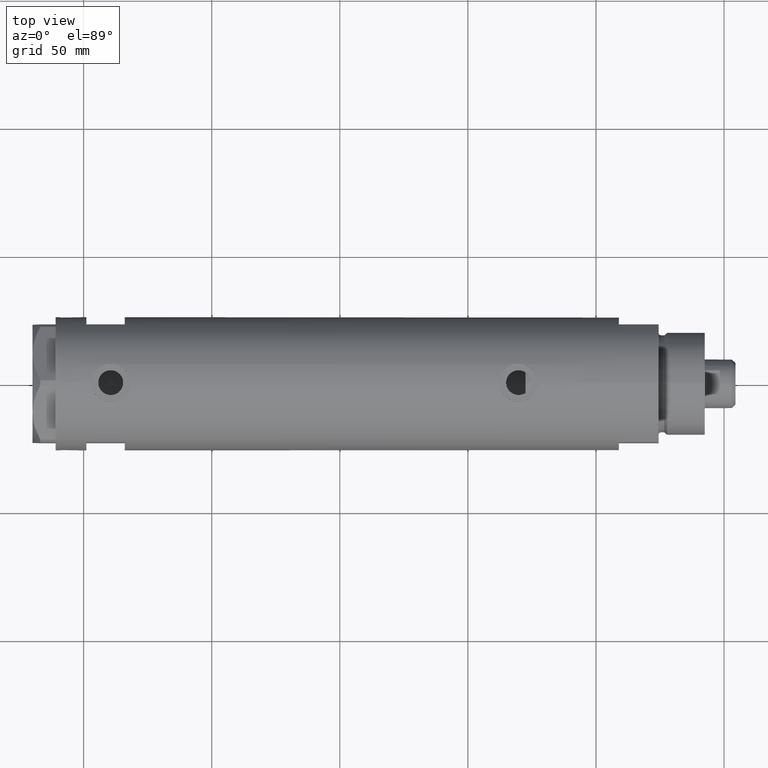
[diagram: clean part render]
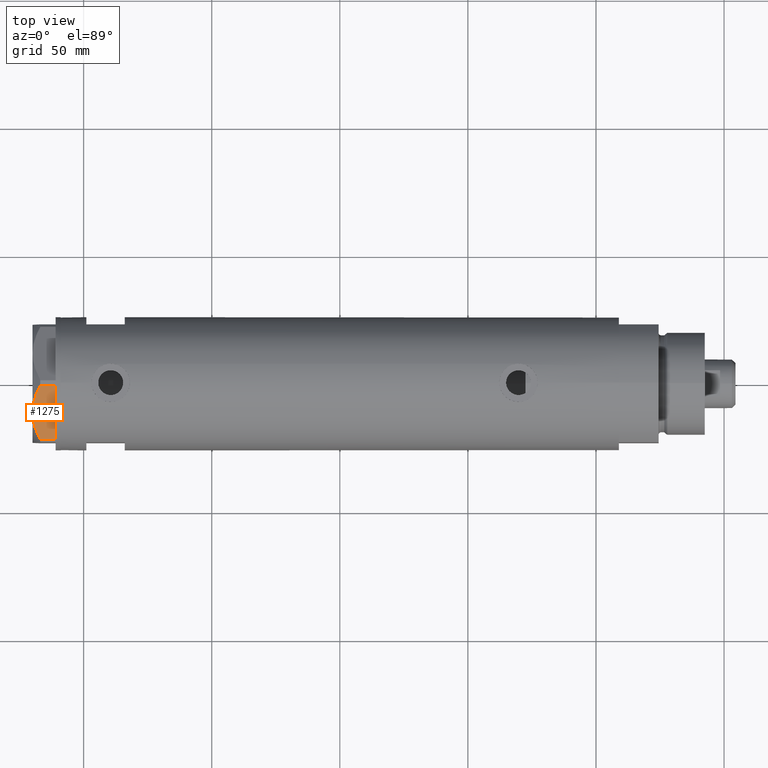
[diagram: same view with one face highlighted and labeled with its STEP entity id]
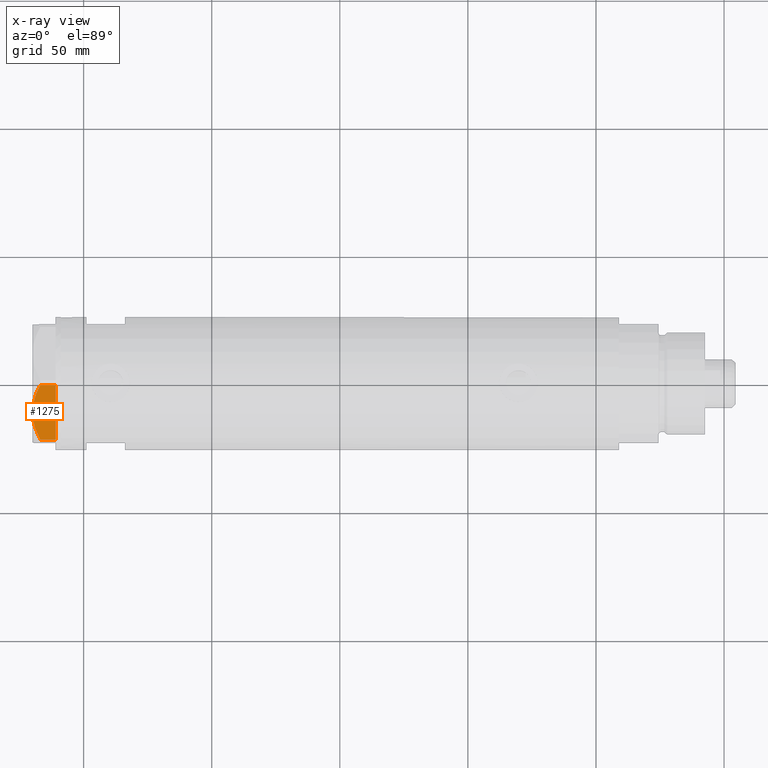
[diagram: x-ray of the same camera — body ghosted, the highlighted face saturated]
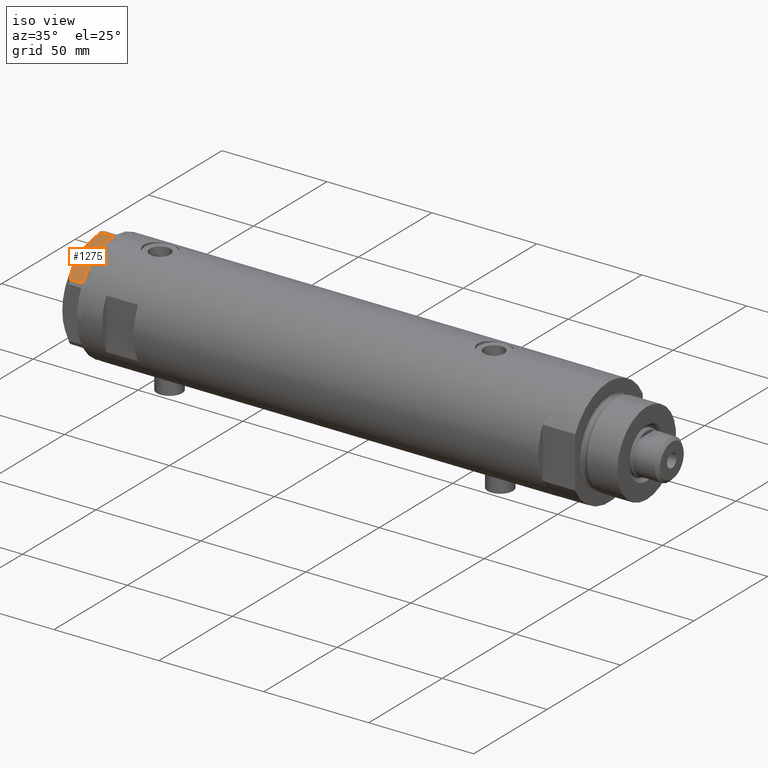
[diagram: same view with one face highlighted and labeled with its STEP entity id]
A machine part, top view. The second image highlights one B-rep face of the part: STEP entity #1275.
The next image is the same camera in x-ray: the body ghosted, the highlighted face saturated — about 0% of this face is hidden behind the body in this view.
A second angle (iso view) of the same face is appended — the face is thin or edge-on in the first view.
In plain terms, the highlighted planar face has unit normal (-0, 0.5, -0.866).
Its self-contained STEP definition (entity closure, byte-faithful):
#176 = CARTESIAN_POINT ( 'NONE',  ( -0.9699484522383977625, -25.99811238272274494, 9.000000000000000000 ) ) ;
#259 = VECTOR ( 'NONE', #1166, 1000.000000000000000 ) ;
#260 = FACE_OUTER_BOUND ( 'NONE', #2356, .T. ) ;
#567 = VERTEX_POINT ( 'NONE', #4491 ) ;
#724 = ORIENTED_EDGE ( 'NONE', *, *, #941, .T. ) ;
#759 = VERTEX_POINT ( 'NONE', #3407 ) ;
#865 = CARTESIAN_POINT ( 'NONE',  ( -13.34348161667001698, -18.85424967941148822, 8.907842277728438063 ) ) ;
#890 = ORIENTED_EDGE ( 'NONE', *, *, #1362, .T. ) ;
#941 = EDGE_CURVE ( 'NONE', #567, #759, #1640, .T. ) ;
#1042 = ORIENTED_EDGE ( 'NONE', *, *, #4075, .F. ) ;
#1060 = CARTESIAN_POINT ( 'NONE',  ( -7.884645426990268824, -22.00591022298511490, 8.707651728477127762 ) ) ;
#1102 = CARTESIAN_POINT ( 'NONE',  ( -15.16323225988328538, -17.80361615569431777, 8.637313967156948991 ) ) ;
#1107 = VERTEX_POINT ( 'NONE', #3705 ) ;
#1132 = LINE ( 'NONE', #3961, #1173 ) ;
#1166 = DIRECTION ( 'NONE',  ( 0.8660254037844415942, -0.4999999999999950595, 0.000000000000000000 ) ) ;
#1173 = VECTOR ( 'NONE', #5124, 1000.000000000000000 ) ;
#1249 = CARTESIAN_POINT ( 'NONE',  ( -11.49999999999990585, -19.91858428704219364, 9.000000000000000000 ) ) ;
#1275 = ADVANCED_FACE ( 'NONE', ( #260 ), #5043, .F. ) ;
#1362 = EDGE_CURVE ( 'NONE', #2126, #4149, #1132, .T. ) ;
#1491 = CARTESIAN_POINT ( 'NONE',  ( -2.640413878808339110, -25.03366871902064261, 6.844201024439214187 ) ) ;
#1583 = CARTESIAN_POINT ( 'NONE',  ( -21.99999999999998224, -13.85640646055105485, 0.000000000000000000 ) ) ;
#1616 = CARTESIAN_POINT ( 'NONE',  ( -22.03005154776132102, -13.83905619136147536, 9.000000000000000000 ) ) ;
#1624 = LINE ( 'NONE', #4762, #259 ) ;
#1640 = LINE ( 'NONE', #1616, #4016 ) ;
#1682 = AXIS2_PLACEMENT_3D ( 'NONE', #5013, #1798, #3043 ) ;
#1798 = DIRECTION ( 'NONE',  ( 0.4999999999999950595, 0.8660254037844415942, -0.000000000000000000 ) ) ;
#1920 = CARTESIAN_POINT ( 'NONE',  ( -13.80210138309694301, -18.58946543380922378, 8.852712638955804181 ) ) ;
#1965 = CARTESIAN_POINT ( 'NONE',  ( -22.99999999999990408, -13.27905619136147841, 0.000000000000000000 ) ) ;
#2053 = CARTESIAN_POINT ( 'NONE',  ( -11.95865151389046588, -19.65378171203314395, 9.000000000000095923 ) ) ;
#2063 = VERTEX_POINT ( 'NONE', #4887 ) ;
#2126 = VERTEX_POINT ( 'NONE', #2206 ) ;
#2175 = DIRECTION ( 'NONE',  ( 0.000000000000000000, 0.000000000000000000, 1.000000000000000000 ) ) ;
#2206 = CARTESIAN_POINT ( 'NONE',  ( -0.9999999999997406519, -25.98076211353317433, 0.000000000000000000 ) ) ;
#2356 = EDGE_LOOP ( 'NONE', ( #1042, #724, #2579, #4320, #890, #4239, #2446 ) ) ;
#2381 = CARTESIAN_POINT ( 'NONE',  ( -12.41906678023023325, -19.38796083407287085, 8.981686407609506873 ) ) ;
#2446 = ORIENTED_EDGE ( 'NONE', *, *, #2484, .F. ) ;
#2484 = EDGE_CURVE ( 'NONE', #2063, #1107, #3672, .T. ) ;
#2537 = CARTESIAN_POINT ( 'NONE',  ( -3.925137811031424562, -24.29193301091729396, 7.397272853992039821 ) ) ;
#2579 = ORIENTED_EDGE ( 'NONE', *, *, #2923, .T. ) ;
#2636 = CARTESIAN_POINT ( 'NONE',  ( -1.799196345398571983, -25.51934588838179607, 6.431317509510369845 ) ) ;
#2669 = CARTESIAN_POINT ( 'NONE',  ( -22.03005154776146313, -13.83905619136139364, 5.983800287807550689 ) ) ;
#2923 = EDGE_CURVE ( 'NONE', #759, #3383, #3211, .T. ) ;
#3043 = DIRECTION ( 'NONE',  ( -0.8660254037844414832, 0.4999999999999950040, 0.000000000000000000 ) ) ;
#3209 = B_SPLINE_CURVE_WITH_KNOTS ( 'NONE', 3,
 ( #2669, #4694, #4271, #3902, #1102, #1920, #865, #2381, #2053, #1249 ),
 .UNSPECIFIED., .F., .F.,
 ( 4, 2, 2, 2, 4 ),
 ( 0.001228959670438514989, 0.007497079744270818830, 0.01063113978118697227, 0.01219816979964504812, 0.01376519981810312397 ),
 .UNSPECIFIED. ) ;
#3211 = LINE ( 'NONE', #1965, #4019 ) ;
#3324 = CARTESIAN_POINT ( 'NONE',  ( -5.671686373603866294, -23.28356272816335348, 8.040681765829727823 ) ) ;
#3383 = VERTEX_POINT ( 'NONE', #1583 ) ;
#3407 = CARTESIAN_POINT ( 'NONE',  ( -22.03005154776132102, -13.83905619136147536, 0.000000000000000000 ) ) ;
#3565 = EDGE_CURVE ( 'NONE', #4149, #1107, #3770, .T. ) ;
#3615 = CARTESIAN_POINT ( 'NONE',  ( -0.9699484522383943208, -25.99811238272274494, 0.000000000000000000 ) ) ;
#3630 = DIRECTION ( 'NONE',  ( 0.8660254037844415942, -0.4999999999999950595, 0.000000000000000000 ) ) ;
#3672 = B_SPLINE_CURVE_WITH_KNOTS ( 'NONE', 3,
 ( #4481, #3740, #1060, #3324, #3718, #5081, #2537, #1491, #2636, #4290 ),
 .UNSPECIFIED., .F., .F.,
 ( 4, 2, 2, 2, 4 ),
 ( 0.01376519981810312397, 0.01998941321701459134, 0.02154546656674245428, 0.02310151991647032069, 0.02621362661592604310 ),
 .UNSPECIFIED. ) ;
#3705 = CARTESIAN_POINT ( 'NONE',  ( -0.9699484522404678843, -25.99811238272155123, 5.983800287808756835 ) ) ;
#3718 = CARTESIAN_POINT ( 'NONE',  ( -5.229981517799206614, -23.53858114556453529, 7.892128867758890998 ) ) ;
#3740 = CARTESIAN_POINT ( 'NONE',  ( -9.678244919010385416, -20.97037507344893115, 9.000000000000088818 ) ) ;
#3770 = LINE ( 'NONE', #176, #4185 ) ;
#3902 = CARTESIAN_POINT ( 'NONE',  ( -16.05322244309625290, -17.28978008384019915, 8.426899937603781865 ) ) ;
#3961 = CARTESIAN_POINT ( 'NONE',  ( -22.99999999999990408, -13.27905619136147841, 0.000000000000000000 ) ) ;
#4016 = VECTOR ( 'NONE', #4756, 1000.000000000000000 ) ;
#4019 = VECTOR ( 'NONE', #3630, 1000.000000000000000 ) ;
#4075 = EDGE_CURVE ( 'NONE', #567, #2063, #3209, .T. ) ;
#4149 = VERTEX_POINT ( 'NONE', #3615 ) ;
#4185 = VECTOR ( 'NONE', #2175, 1000.000000000000000 ) ;
#4239 = ORIENTED_EDGE ( 'NONE', *, *, #3565, .T. ) ;
#4271 = CARTESIAN_POINT ( 'NONE',  ( -18.67981377008999644, -15.77331687414923778, 7.629374868826104716 ) ) ;
#4290 = CARTESIAN_POINT ( 'NONE',  ( -0.9699484522404678843, -25.99811238272155123, 5.983800287808756835 ) ) ;
#4320 = ORIENTED_EDGE ( 'NONE', *, *, #4432, .T. ) ;
#4432 = EDGE_CURVE ( 'NONE', #3383, #2126, #1624, .T. ) ;
#4481 = CARTESIAN_POINT ( 'NONE',  ( -11.49999999999990585, -19.91858428704219364, 9.000000000000000000 ) ) ;
#4491 = CARTESIAN_POINT ( 'NONE',  ( -22.03005154776146313, -13.83905619136139364, 5.983800287807550689 ) ) ;
#4694 = CARTESIAN_POINT ( 'NONE',  ( -20.37350567916426058, -14.79546339452094017, 6.877782426143456362 ) ) ;
#4756 = DIRECTION ( 'NONE',  ( -0.000000000000000000, 0.000000000000000000, -1.000000000000000000 ) ) ;
#4762 = CARTESIAN_POINT ( 'NONE',  ( -22.99999999999990408, -13.27905619136147841, 0.000000000000000000 ) ) ;
#4887 = CARTESIAN_POINT ( 'NONE',  ( -11.49999999999990585, -19.91858428704219364, 9.000000000000000000 ) ) ;
#5013 = CARTESIAN_POINT ( 'NONE',  ( -22.99999999999990408, -13.27905619136147841, 9.000000000000000000 ) ) ;
#5043 = PLANE ( 'NONE',  #1682 ) ;
#5081 = CARTESIAN_POINT ( 'NONE',  ( -4.357207709417335373, -24.04247733877546267, 7.570552255230290406 ) ) ;
#5124 = DIRECTION ( 'NONE',  ( 0.8660254037844415942, -0.4999999999999950595, 0.000000000000000000 ) ) ;